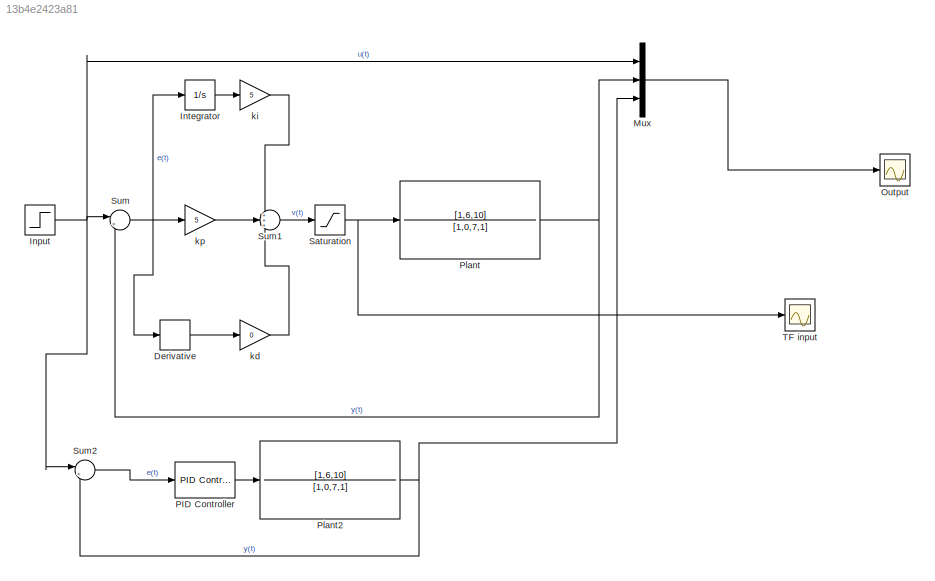
MODEL slx_13b4e2423a81
KIND model
CONFIG AbsTol = auto
CONFIG EnableMultiTasking = off
CONFIG FixedStep = auto
CONFIG MaxStep = auto
CONFIG MinStep = auto
CONFIG RelTol = 1e-3
CONFIG SampleTimeConstraint = Unconstrained
CONFIG SolverName = VariableStepAuto
CONFIG StartTime = 0.0
CONFIG StopTime = 20
BLOCK [Derivative] Derivative
BLOCK [Step] Input
  SampleTime = 0
BLOCK [Integrator] Integrator
BLOCK [Mux] Mux
  DisplayOption = bar
  Inputs = 3
BLOCK [Scope] Output
  Floating = off
  NumInputPorts = 1
  ScopeSpecificationString = Simulink.scopes.TimeScopeBlockCfg('CurrentConfiguration', extmgr.ConfigurationSet(extmgr.Configuration('Core','General UI',true),extmgr.Configuration('Core','Source UI',true),extmgr.Configuration('Sources','WiredSimulink',true),extmgr.Configuration('Visuals','Time Domain',true,'SerializedDisplays',{struct('MinYLimReal','-0.17357','MaxYLimReal','1.5621','YLabelReal','','MinYLimMag','0.00000','MaxYL...<+1467ch>
BLOCK [Reference] PID Controller  REF=slpidlib/PID Controller
  LibrarySourceBlock = simulink/Continuous/PID Controller
  SourceBlock = slpidlib/PID Controller
  SourceType = PID 1dof
BLOCK [TransferFcn] Plant
  Denominator = [1,0,7,1]
  Numerator = [1,6,10]
BLOCK [TransferFcn] Plant2
  Denominator = [1,0,7,1]
  Numerator = [1,6,10]
BLOCK [Saturate] Saturation
  LowerLimit = -2
  UpperLimit = 2
BLOCK [Sum] Sum
  Inputs = |+-
BLOCK [Sum] Sum1
  Inputs = +++
BLOCK [Sum] Sum2
  Inputs = |+-
BLOCK [Scope] TF input
  Floating = off
  NumInputPorts = 1
  ScopeSpecificationString = Simulink.scopes.TimeScopeBlockCfg('CurrentConfiguration', extmgr.ConfigurationSet(extmgr.Configuration('Core','General UI',true),extmgr.Configuration('Core','Source UI',true),extmgr.Configuration('Sources','WiredSimulink',true,'DataLoggingVariableName','ScopeData1'),extmgr.Configuration('Visuals','Time Domain',true,'SerializedDisplays',{struct('MinYLimReal','-0.5152','MaxYLimReal','2.27947','YLabe...<+1500ch>
BLOCK [Gain] kd
  Gain = 0
BLOCK [Gain] ki
  Gain = 5
BLOCK [Gain] kp
  Gain = 5
LINE Derivative:1 -> kd:1
NET Input:1 -> Mux:1, Sum2:1, Sum:1
LINE Integrator:1 -> ki:1
LINE Mux:1 -> Output:1
LINE PID Controller:1 -> Plant2:1
NET Plant2:1 -> Mux:3, Sum2:2
NET Plant:1 -> Mux:2, Sum:2
NET Saturation:1 -> Plant:1, TF input:1
LINE Sum1:1 -> Saturation:1
LINE Sum2:1 -> PID Controller:1
NET Sum:1 -> Derivative:1, Integrator:1, kp:1
LINE kd:1 -> Sum1:3
LINE ki:1 -> Sum1:1
LINE kp:1 -> Sum1:2
note: NET lines group one-source signal fan-out (src -> all destinations, sorted); 1:1 wires keep LINE
